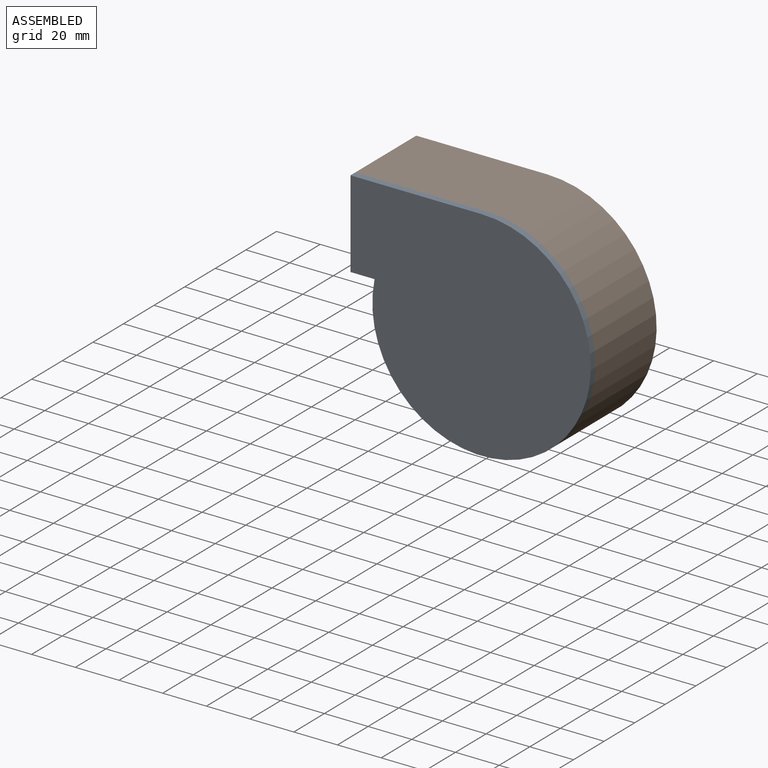
[diagram: assembled view]
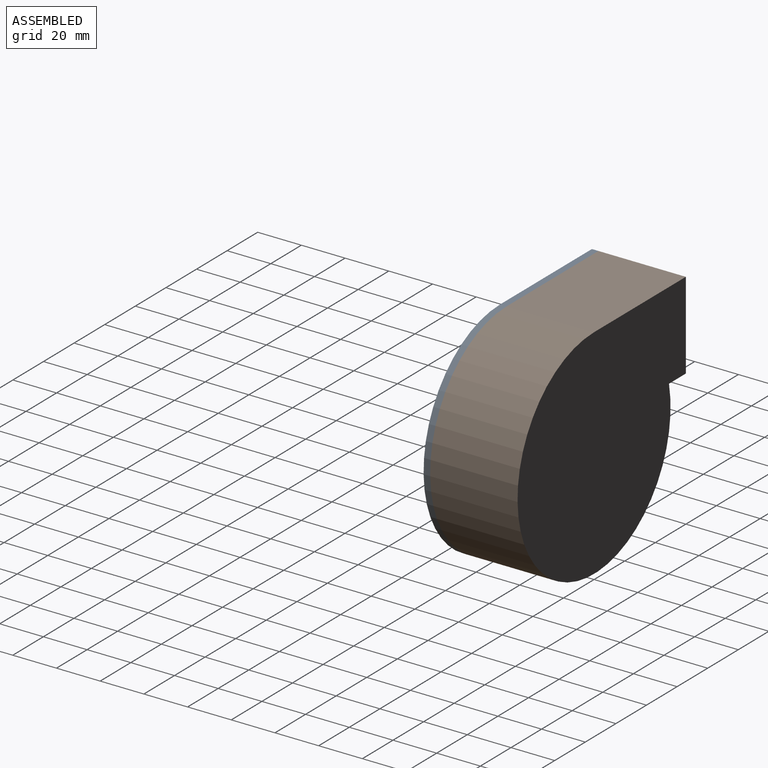
[diagram: assembled view, second angle]
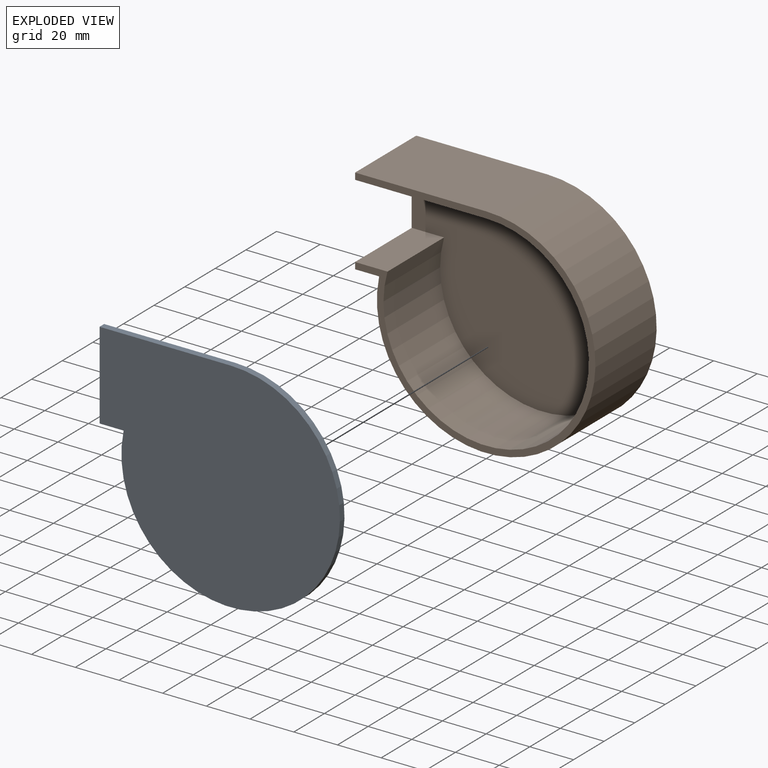
[diagram: exploded view]
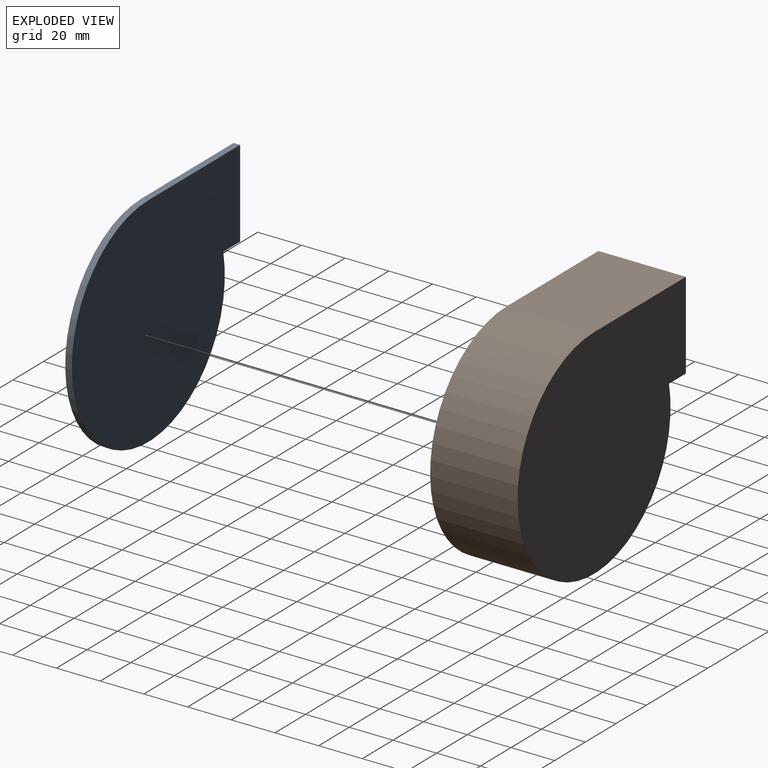
[diagram: exploded view, second angle]
ASSEMBLY  parts=2 mates=3
PART A: 6 faces, bbox 110x3x100 mm
  f0: plane 60x3mm, normal (0,0,1), area 180mm2, adj f1,f3,f4,f5
  f1: plane 40x3mm, normal (-1,0,0), area 120mm2, adj f0,f2,f4,f5
  f2: plane 11.01x3mm, normal (0,0,-1), area 33mm2, adj f1,f3,f4,f5
  f3: cylinder r=50mm len=100mm, axis (0,1,0), area 737.1mm2, adj f0,f2,f4,f5
  f4: plane 110x100mm, normal (0,-1,0), area 8787.1mm2, adj f0,f1,f2,f3
  f5: plane 110x100mm, normal (0,1,0), area 8787.1mm2, adj f0,f1,f2,f3
PART B: 10 faces, bbox 110x40x100 mm
  f0: plane 110x100mm, normal (0,-1,0), area 939.2mm2, adj f1,f2,f3,f4,f6,f7,f8
  f1: plane 60x40mm, normal (0,0,1), area 2400mm2, adj f0,f2,f4,f5
  f2: plane 40x40mm, normal (-1,0,0), area 342mm2, adj f0,f1,f3,f5,f6,f7,f9
  f3: plane 40x11.01mm, normal (0,0,-1), area 440.4mm2, adj f0,f2,f4,f5
  f4: cylinder r=50mm len=100mm, axis (0,1,0), area 9827.5mm2, adj f0,f1,f3,f5
  f5: plane 110x100mm, normal (0,1,0), area 8787.1mm2, adj f1,f2,f3,f4
  f6: plane 60x37mm, normal (0,0,-1), area 2220mm2, adj f0,f2,f8,f9
  f7: plane 37x14.83mm, normal (0,0,1), area 548.8mm2, adj f0,f2,f8,f9
  f8: cylinder r=47mm len=94mm, axis (0,1,0), area 8682.2mm2, adj f0,f6,f7,f9
  f9: plane 107x94mm, normal (0,-1,0), area 7848mm2, adj f2,f6,f7,f8
PLACE A t=(0,-20,0)mm
PLACE B at identity fixed
MATE planar A.f5 <-> B.f0  axis (0,1,0) through (-60,-20,50)mm
MATE cylindrical B.f4 <-> A.f3  axis (0,1,0) through (0,0,0)mm
MATE planar B.f1 <-> A.f0  axis (0,0,1) through (-30,0,50)mm
